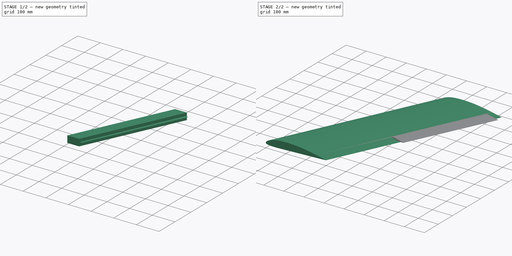
[diagram: build sequence overview — one tinted view per stage of 2, left to right]
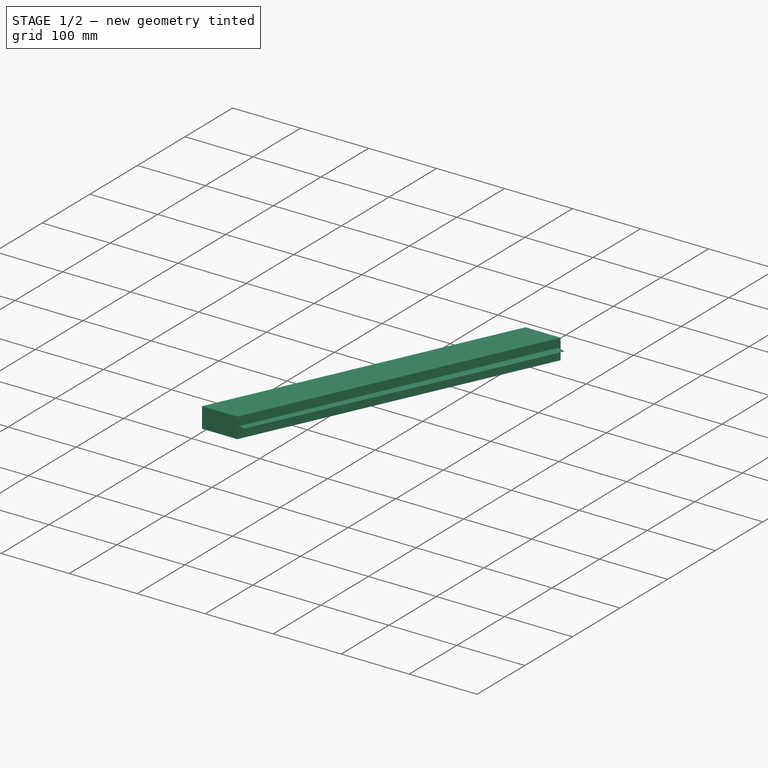
[diagram: stage 1 of 2 — iso view after this stage's code; geometry added in this stage tinted green]
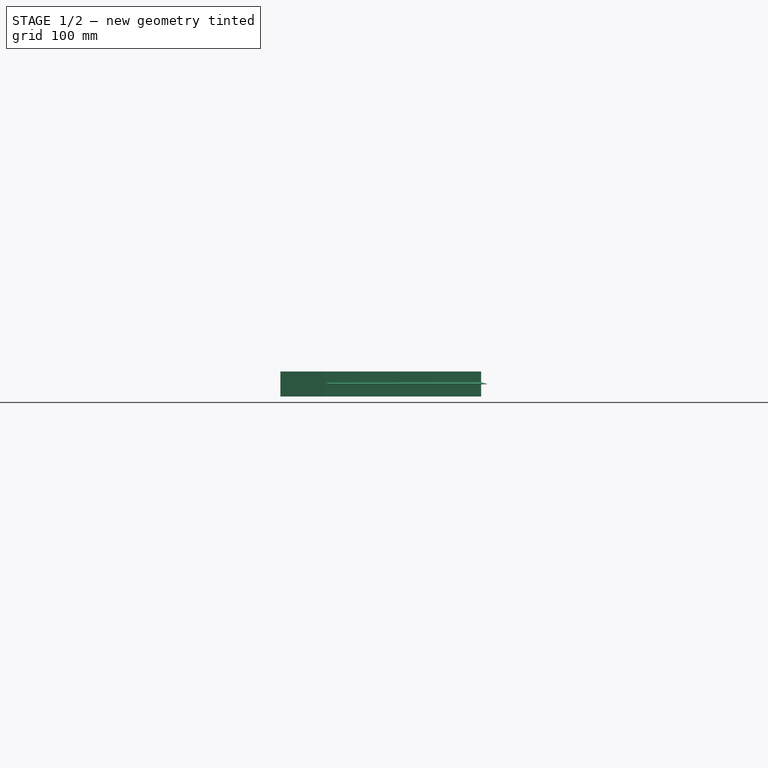
[diagram: stage 1 of 2 — front view after this stage's code; geometry added in this stage tinted green]
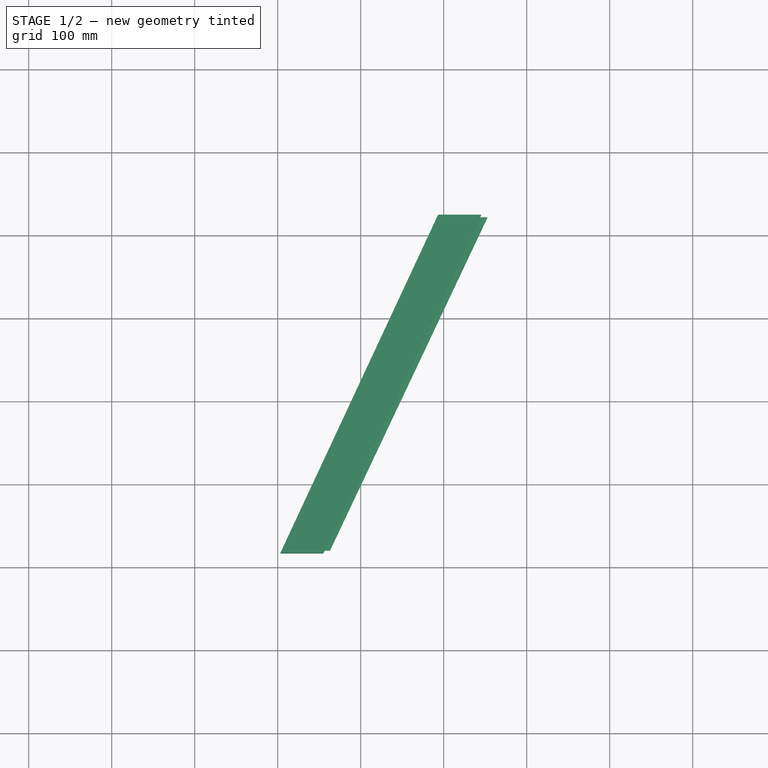
[diagram: stage 1 of 2 — top view after this stage's code; geometry added in this stage tinted green]
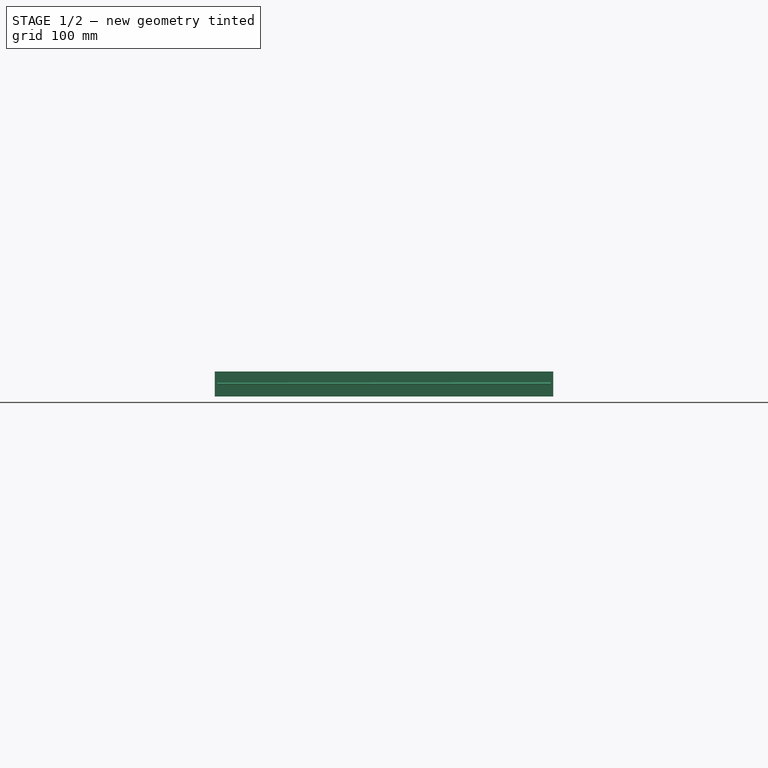
[diagram: stage 1 of 2 — right view after this stage's code; geometry added in this stage tinted green]
FCSTD DOCUMENT  (FreeCAD 1.0R39319 (Git))
Label: Unnamed
License: All rights reserved
LicenseURL: https://en.wikipedia.org/wiki/All_rights_reserved
objects: Sketcher::SketchObject×5, PartDesign::Body×3, PartDesign::AdditiveLoft×2, PartDesign::Pad×1, PartDesign::Boolean×1
note: 24 computed .brp shape members not serialized (recipe doc carries the construction recipe); baked Part::Feature solids carry a one-line shape summary decoded from their .brp

FEATURE [Sketcher::SketchObject] Sketch002
  ArcFitTolerance = 1e-06
  AttachmentSupport = -> [XY_Plane001]
  FullyConstrained = false
  MakeInternals = false
  MapMode = 5
  sketch-geometry (4):
    g0: LineSegment StartX=593.329 StartY=725.002 StartZ=0 EndX=403.151 EndY=317.163 EndZ=0
    g1: LineSegment StartX=645.144 StartY=725.002 StartZ=0 EndX=454.966 EndY=317.163 EndZ=0
    g2: LineSegment StartX=403.151 StartY=317.163 StartZ=0 EndX=454.966 EndY=317.163 EndZ=0
    g3: LineSegment StartX=593.329 StartY=725.002 StartZ=0 EndX=645.144 EndY=725.002 EndZ=0
  constraints (8):
    c: Distance(g0) = 450
    c: Distance(g1) = 450
    c: Coincident(g2,g0)
    c: Coincident(g2,g1)
    c: Horizontal(g2)
    c: Coincident(g3,g0)
    c: Coincident(g3,g1)
    c: Horizontal(g3)
FEATURE [PartDesign::Pad] Pad
  Direction = (0,0,1)
  Length = 30
  Length2 = 10
  Midplane = true
  Profile = -> Sketch002
  ReferenceAxis = -> Sketch002 [N_Axis]
  Refine = true
  Suppressed = false
  Type = 0
FEATURE [PartDesign::Body] Body
  AllowCompound = false
  Group = -> [Sketch001,Sketch,AdditiveLoft,Boolean]
  Origin = -> Origin
  Tip = -> Boolean
FEATURE [Sketcher::SketchObject] Sketch003
  ArcFitTolerance = 1e-06
  FullyConstrained = false
  MakeInternals = false
  Placement = pos=(353,722,0) rot=(1,0,0;1.5708rad)
  sketch-geometry (23):
    g0: LineSegment StartX=243.591 StartY=12.0254 StartZ=0 EndX=252 EndY=10.8161 EndZ=0
    g1: LineSegment StartX=252 StartY=10.8161 StartZ=0 EndX=258 EndY=9.5922 EndZ=0
    g2: LineSegment StartX=258 StartY=9.5922 StartZ=0 EndX=264 EndY=8.33673 EndZ=0
    g3: LineSegment StartX=264 StartY=8.33673 StartZ=0 EndX=270 EndY=7.05075 EndZ=0
    g4: LineSegment StartX=270 StartY=7.05075 StartZ=0 EndX=276 EndY=5.73468 EndZ=0
    g5: LineSegment StartX=276 StartY=5.73468 StartZ=0 EndX=282 EndY=4.38717 EndZ=0
    g6: LineSegment StartX=282 StartY=4.38717 StartZ=0 EndX=288 EndY=3.00696 EndZ=0
    g7: LineSegment StartX=288 StartY=3.00696 StartZ=0 EndX=291 EndY=2.30604 EndZ=0
    g8: LineSegment StartX=291 StartY=2.30604 StartZ=0 EndX=294 EndY=1.60005 EndZ=0
    g9: LineSegment StartX=294 StartY=1.60005 StartZ=0 EndX=297 EndY=0.8907 EndZ=0
    g10: LineSegment StartX=297 StartY=0.8907 StartZ=0 EndX=299.995 EndY=0 EndZ=0
    g11: LineSegment StartX=243.591 StartY=-2.14492 StartZ=0 EndX=252 EndY=-1.94259 EndZ=0
    g12: LineSegment StartX=252 StartY=-1.94259 StartZ=0 EndX=258 EndY=-1.72224 EndZ=0
    g13: LineSegment StartX=258 StartY=-1.72224 StartZ=0 EndX=264 EndY=-1.50189 EndZ=0
    g14: LineSegment StartX=264 StartY=-1.50189 StartZ=0 EndX=270 EndY=-1.28154 EndZ=0
    g15: LineSegment StartX=270 StartY=-1.28154 StartZ=0 EndX=276 EndY=-1.06119 EndZ=0
    g16: LineSegment StartX=276 StartY=-1.06119 StartZ=0 EndX=282 EndY=-0.84084 EndZ=0
    g17: LineSegment StartX=282 StartY=-0.84084 StartZ=0 EndX=288 EndY=-0.62049 EndZ=0
    g18: LineSegment StartX=288 StartY=-0.62049 StartZ=0 EndX=291 EndY=-0.51033 EndZ=0
    g19: LineSegment StartX=291 StartY=-0.51033 StartZ=0 EndX=294 EndY=-0.40017 EndZ=0
    g20: LineSegment StartX=294 StartY=-0.40017 StartZ=0 EndX=297 EndY=-0.28998 EndZ=0
    g21: LineSegment StartX=297 StartY=-0.28998 StartZ=0 EndX=299.995 EndY=0 EndZ=0
    g22: LineSegment StartX=243.591 StartY=12.0254 StartZ=0 EndX=243.591 EndY=-2.14492 EndZ=0
  constraints (24):
    c: Coincident(g0,g1)
    c: Coincident(g1,g2)
    c: Coincident(g2,g3)
    c: Coincident(g3,g4)
    c: Coincident(g4,g5)
    c: Coincident(g5,g6)
    c: Coincident(g6,g7)
    c: Coincident(g7,g8)
    c: Coincident(g8,g9)
    c: Coincident(g9,g10)
    c: Coincident(g11,g12)
    c: Coincident(g12,g13)
    c: Coincident(g13,g14)
    c: Coincident(g14,g15)
    c: Coincident(g15,g16)
    c: Coincident(g16,g17)
    c: Coincident(g17,g18)
    c: Coincident(g18,g19)
    c: Coincident(g19,g20)
    c: Coincident(g20,g21)
    c: Coincident(g10,g21)
    c: Coincident(g22,g0)
    c: Coincident(g22,g11)
    c: Vertical(g22)
FEATURE [Sketcher::SketchObject] Sketch004
  ArcFitTolerance = 1e-06
  FullyConstrained = false
  MakeInternals = false
  Placement = pos=(163,320.16,0) rot=(1,0,0;1.5708rad)
  sketch-geometry (23):
    g0: LineSegment StartX=243.591 StartY=12.0254 StartZ=0 EndX=252 EndY=10.8161 EndZ=0
    g1: LineSegment StartX=252 StartY=10.8161 StartZ=0 EndX=258 EndY=9.5922 EndZ=0
    g2: LineSegment StartX=258 StartY=9.5922 StartZ=0 EndX=264 EndY=8.33673 EndZ=0
    g3: LineSegment StartX=264 StartY=8.33673 StartZ=0 EndX=270 EndY=7.05075 EndZ=0
    g4: LineSegment StartX=270 StartY=7.05075 StartZ=0 EndX=276 EndY=5.73468 EndZ=0
    g5: LineSegment StartX=276 StartY=5.73468 StartZ=0 EndX=282 EndY=4.38717 EndZ=0
    g6: LineSegment StartX=282 StartY=4.38717 StartZ=0 EndX=288 EndY=3.00696 EndZ=0
    g7: LineSegment StartX=288 StartY=3.00696 StartZ=0 EndX=291 EndY=2.30604 EndZ=0
    g8: LineSegment StartX=291 StartY=2.30604 StartZ=0 EndX=294 EndY=1.60005 EndZ=0
    g9: LineSegment StartX=294 StartY=1.60005 StartZ=0 EndX=297 EndY=0.8907 EndZ=0
    g10: LineSegment StartX=297 StartY=0.8907 StartZ=0 EndX=299.995 EndY=0 EndZ=0
    g11: LineSegment StartX=243.591 StartY=-2.14492 StartZ=0 EndX=252 EndY=-1.94259 EndZ=0
    g12: LineSegment StartX=252 StartY=-1.94259 StartZ=0 EndX=258 EndY=-1.72224 EndZ=0
    g13: LineSegment StartX=258 StartY=-1.72224 StartZ=0 EndX=264 EndY=-1.50189 EndZ=0
    g14: LineSegment StartX=264 StartY=-1.50189 StartZ=0 EndX=270 EndY=-1.28154 EndZ=0
    g15: LineSegment StartX=270 StartY=-1.28154 StartZ=0 EndX=276 EndY=-1.06119 EndZ=0
    g16: LineSegment StartX=276 StartY=-1.06119 StartZ=0 EndX=282 EndY=-0.84084 EndZ=0
    g17: LineSegment StartX=282 StartY=-0.84084 StartZ=0 EndX=288 EndY=-0.62049 EndZ=0
    g18: LineSegment StartX=288 StartY=-0.62049 StartZ=0 EndX=291 EndY=-0.51033 EndZ=0
    g19: LineSegment StartX=291 StartY=-0.51033 StartZ=0 EndX=294 EndY=-0.40017 EndZ=0
    g20: LineSegment StartX=294 StartY=-0.40017 StartZ=0 EndX=297 EndY=-0.28998 EndZ=0
    g21: LineSegment StartX=297 StartY=-0.28998 StartZ=0 EndX=299.995 EndY=0 EndZ=0
    g22: LineSegment StartX=243.591 StartY=12.0254 StartZ=0 EndX=243.591 EndY=-2.14492 EndZ=0
  constraints (24):
    c: Coincident(g0,g1)
    c: Coincident(g1,g2)
    c: Coincident(g2,g3)
    c: Coincident(g3,g4)
    c: Coincident(g4,g5)
    c: Coincident(g5,g6)
    c: Coincident(g6,g7)
    c: Coincident(g7,g8)
    c: Coincident(g8,g9)
    c: Coincident(g9,g10)
    c: Coincident(g11,g12)
    c: Coincident(g12,g13)
    c: Coincident(g13,g14)
    c: Coincident(g14,g15)
    c: Coincident(g15,g16)
    c: Coincident(g16,g17)
    c: Coincident(g17,g18)
    c: Coincident(g18,g19)
    c: Coincident(g19,g20)
    c: Coincident(g20,g21)
    c: Coincident(g10,g21)
    c: Coincident(g22,g0)
    c: Coincident(g22,g11)
    c: Vertical(g22)
FEATURE [PartDesign::AdditiveLoft] AdditiveLoft001
  Closed = false
  Placement = pos=(353,722,0) rot=(1,0,0;1.5708rad)
  Profile = -> Sketch003
  Refine = true
  Ruled = false
  Sections = -> [Sketch004]
  Suppressed = false
FEATURE [PartDesign::Body] Body002  label="Flaperon"
  AllowCompound = false
  Group = -> [Sketch003,Sketch004,AdditiveLoft001]
  Origin = -> Origin002
  Tip = -> AdditiveLoft001
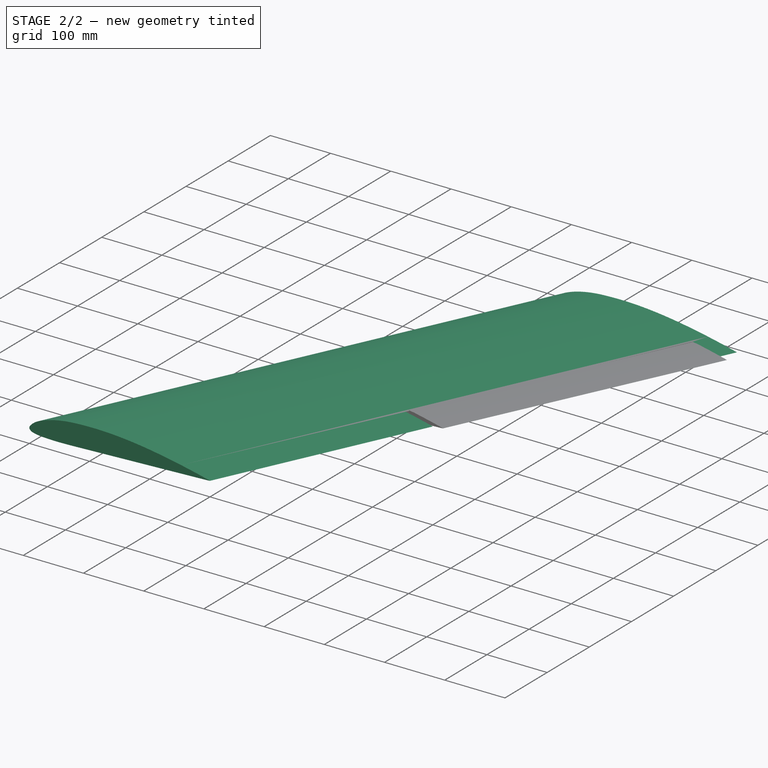
[diagram: stage 2 of 2 — iso view after this stage's code; geometry added in this stage tinted green]
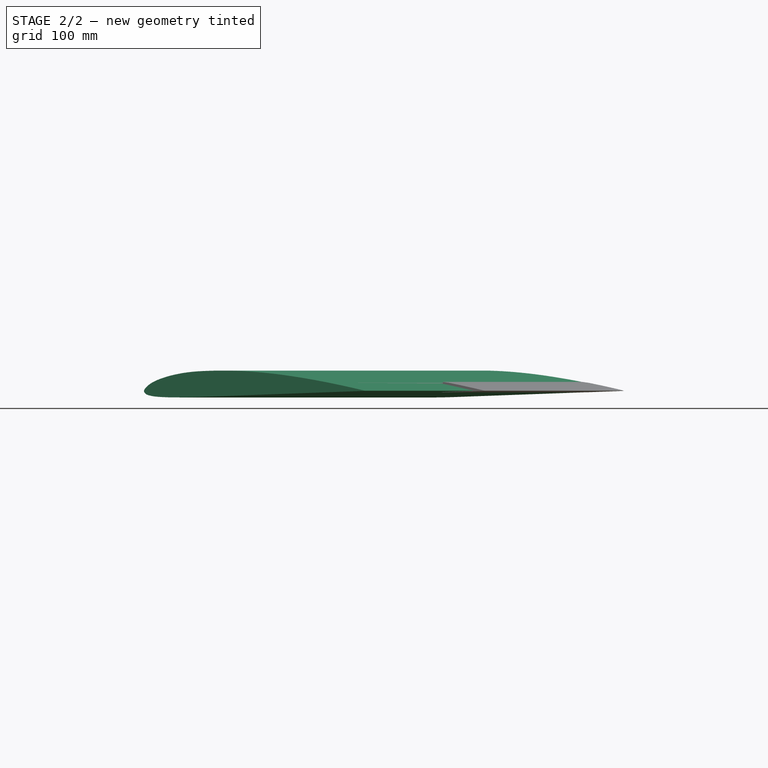
[diagram: stage 2 of 2 — front view after this stage's code; geometry added in this stage tinted green]
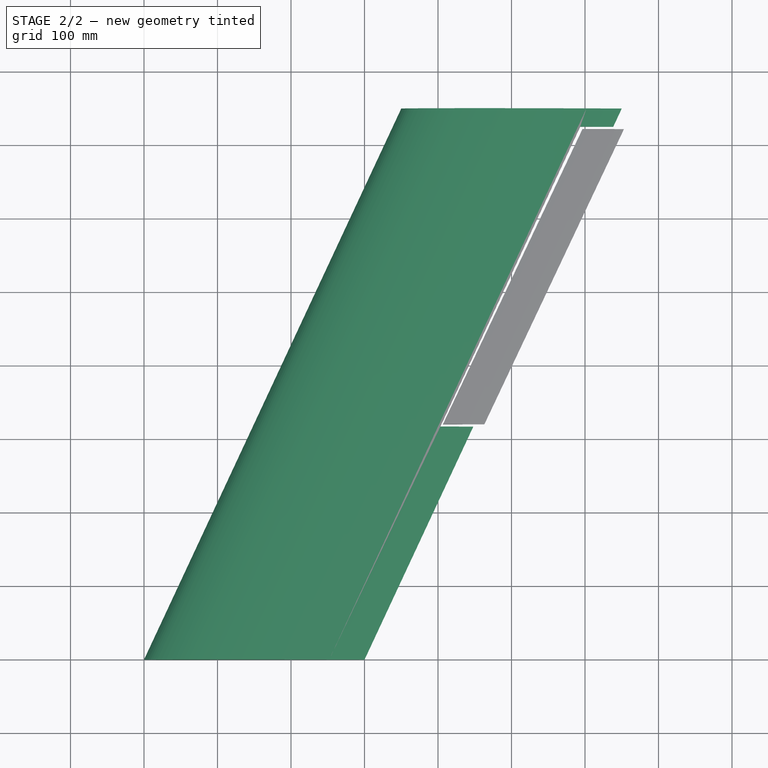
[diagram: stage 2 of 2 — top view after this stage's code; geometry added in this stage tinted green]
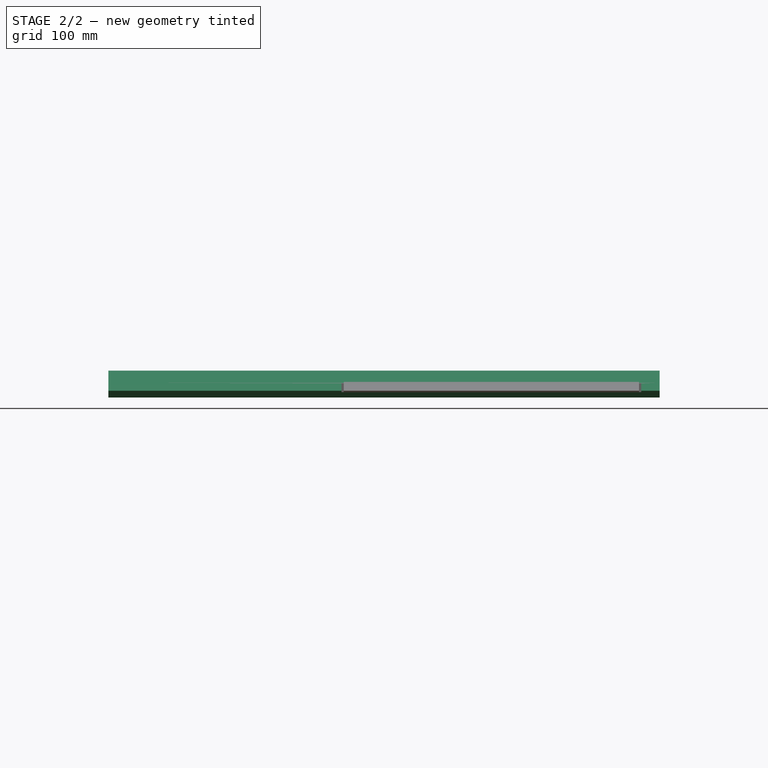
[diagram: stage 2 of 2 — right view after this stage's code; geometry added in this stage tinted green]
FEATURE [Sketcher::SketchObject] Sketch
  ArcFitTolerance = 1e-06
  FullyConstrained = false
  MakeInternals = false
  Placement = pos=(0,0,0) rot=(1,0,0;1.5708rad)
  sketch-geometry (120):
    g0: LineSegment StartX=0 StartY=0 StartZ=0 EndX=0.15 EndY=0.7017 EndZ=0
    g1: LineSegment StartX=0.15 StartY=0.7017 StartZ=0 EndX=0.3 EndY=1.11813 EndZ=0
    g2: LineSegment StartX=0.3 StartY=1.11813 StartZ=0 EndX=0.6 EndY=1.74075 EndZ=0
    g3: LineSegment StartX=0.6 StartY=1.74075 StartZ=0 EndX=1.2 EndY=2.67714 EndZ=0
    g4: LineSegment StartX=1.2 StartY=2.67714 StartZ=0 EndX=2.4 EndY=4.1205 EndZ=0
    g5: LineSegment StartX=2.4 StartY=4.1205 StartZ=0 EndX=3.6 EndY=5.35743 EndZ=0
    g6: LineSegment StartX=3.6 StartY=5.35743 StartZ=0 EndX=6 EndY=7.61205 EndZ=0
    g7: LineSegment StartX=6 StartY=7.61205 StartZ=0 EndX=9 EndY=9.90645 EndZ=0
    g8: LineSegment StartX=9 StartY=9.90645 StartZ=0 EndX=12 EndY=11.7385 EndZ=0
    g9: LineSegment StartX=12 StartY=11.7385 StartZ=0 EndX=15 EndY=13.2826 EndZ=0
    g10: LineSegment StartX=15 StartY=13.2826 StartZ=0 EndX=18 EndY=14.6271 EndZ=0
    g11: LineSegment StartX=18 StartY=14.6271 StartZ=0 EndX=24 EndY=16.9292 EndZ=0
    g12: LineSegment StartX=24 StartY=16.9292 StartZ=0 EndX=30 EndY=18.8994 EndZ=0
    g13: LineSegment StartX=30 StartY=18.8994 StartZ=0 EndX=36 EndY=20.5861 EndZ=0
    g14: LineSegment StartX=36 StartY=20.5861 StartZ=0 EndX=42 EndY=22.0308 EndZ=0
    g15: LineSegment StartX=42 StartY=22.0308 StartZ=0 EndX=48 EndY=23.2712 EndZ=0
    g16: LineSegment StartX=48 StartY=23.2712 StartZ=0 EndX=54 EndY=24.3206 EndZ=0
    g17: LineSegment StartX=54 StartY=24.3206 StartZ=0 EndX=60 EndY=25.1761 EndZ=0
    g18: LineSegment StartX=60 StartY=25.1761 StartZ=0 EndX=66 EndY=25.843 EndZ=0
    g19: LineSegment StartX=66 StartY=25.843 StartZ=0 EndX=72 EndY=26.3492 EndZ=0
    g20: LineSegment StartX=72 StartY=26.3492 StartZ=0 EndX=78 EndY=26.7252 EndZ=0
    g21: LineSegment StartX=78 StartY=26.7252 StartZ=0 EndX=84 EndY=27.0005 EndZ=0
    g22: LineSegment StartX=84 StartY=27.0005 StartZ=0 EndX=90 EndY=27.2041 EndZ=0
    g23: LineSegment StartX=90 StartY=27.2041 StartZ=0 EndX=96 EndY=27.3557 EndZ=0
    g24: LineSegment StartX=96 StartY=27.3557 StartZ=0 EndX=102 EndY=27.4524 EndZ=0
    g25: LineSegment StartX=102 StartY=27.4524 StartZ=0 EndX=108 EndY=27.488 EndZ=0
    g26: LineSegment StartX=108 StartY=27.488 StartZ=0 EndX=114 EndY=27.4564 EndZ=0
    g27: LineSegment StartX=114 StartY=27.4564 StartZ=0 EndX=120 EndY=27.3514 EndZ=0
    g28: LineSegment StartX=120 StartY=27.3514 StartZ=0 EndX=126 EndY=27.1697 EndZ=0
    g29: LineSegment StartX=126 StartY=27.1697 StartZ=0 EndX=132 EndY=26.9153 EndZ=0
    g30: LineSegment StartX=132 StartY=26.9153 StartZ=0 EndX=138 EndY=26.5928 EndZ=0
    g31: LineSegment StartX=138 StartY=26.5928 StartZ=0 EndX=144 EndY=26.2072 EndZ=0
    g32: LineSegment StartX=144 StartY=26.2072 StartZ=0 EndX=150 EndY=25.7632 EndZ=0
    g33: LineSegment StartX=150 StartY=25.7632 StartZ=0 EndX=156 EndY=25.2644 EndZ=0
    g34: LineSegment StartX=156 StartY=25.2644 StartZ=0 EndX=162 EndY=24.7114 EndZ=0
    g35: LineSegment StartX=162 StartY=24.7114 StartZ=0 EndX=168 EndY=24.1044 EndZ=0
    g36: LineSegment StartX=168 StartY=24.1044 StartZ=0 EndX=174 EndY=23.4435 EndZ=0
    g37: LineSegment StartX=174 StartY=23.4435 StartZ=0 EndX=180 EndY=22.729 EndZ=0
    g38: LineSegment StartX=180 StartY=22.729 StartZ=0 EndX=186 EndY=21.9617 EndZ=0
    g39: LineSegment StartX=186 StartY=21.9617 StartZ=0 EndX=192 EndY=21.1447 EndZ=0
    g40: LineSegment StartX=192 StartY=21.1447 StartZ=0 EndX=198 EndY=20.2814 EndZ=0
    g41: LineSegment StartX=198 StartY=20.2814 StartZ=0 EndX=204 EndY=19.3753 EndZ=0
    g42: LineSegment StartX=204 StartY=19.3753 StartZ=0 EndX=210 EndY=18.4299 EndZ=0
    g43: LineSegment StartX=210 StartY=18.4299 StartZ=0 EndX=216 EndY=17.448 EndZ=0
    g44: LineSegment StartX=216 StartY=17.448 StartZ=0 EndX=222 EndY=16.4303 EndZ=0
    g45: LineSegment StartX=222 StartY=16.4303 StartZ=0 EndX=228 EndY=15.377 EndZ=0
    g46: LineSegment StartX=228 StartY=15.377 StartZ=0 EndX=234 EndY=14.2884 EndZ=0
    g47: LineSegment StartX=234 StartY=14.2884 StartZ=0 EndX=240 EndY=13.1651 EndZ=0
    g48: LineSegment StartX=240 StartY=13.1651 StartZ=0 EndX=246 EndY=12.0073 EndZ=0
    g49: LineSegment StartX=246 StartY=12.0073 StartZ=0 EndX=252 EndY=10.8161 EndZ=0
    g50: LineSegment StartX=252 StartY=10.8161 StartZ=0 EndX=258 EndY=9.5922 EndZ=0
    g51: LineSegment StartX=258 StartY=9.5922 StartZ=0 EndX=264 EndY=8.33673 EndZ=0
    g52: LineSegment StartX=264 StartY=8.33673 StartZ=0 EndX=270 EndY=7.05075 EndZ=0
    g53: LineSegment StartX=270 StartY=7.05075 StartZ=0 EndX=276 EndY=5.73468 EndZ=0
    g54: LineSegment StartX=276 StartY=5.73468 StartZ=0 EndX=282 EndY=4.38717 EndZ=0
    g55: LineSegment StartX=282 StartY=4.38717 StartZ=0 EndX=288 EndY=3.00696 EndZ=0
    g56: LineSegment StartX=288 StartY=3.00696 StartZ=0 EndX=291 EndY=2.30604 EndZ=0
    g57: LineSegment StartX=291 StartY=2.30604 StartZ=0 EndX=294 EndY=1.60005 EndZ=0
    g58: LineSegment StartX=294 StartY=1.60005 StartZ=0 EndX=297 EndY=0.8907 EndZ=0
    g59: LineSegment StartX=297 StartY=0.8907 StartZ=0 EndX=299.995 EndY=0 EndZ=0
    g60: LineSegment StartX=0 StartY=0 StartZ=0 EndX=0.15 EndY=-1.401 EndZ=0
    g61: LineSegment StartX=0.15 StartY=-1.401 StartZ=0 EndX=0.3 EndY=-1.78254 EndZ=0
    g62: LineSegment StartX=0.3 StartY=-1.78254 StartZ=0 EndX=0.6 EndY=-2.34339 EndZ=0
    g63: LineSegment StartX=0.6 StartY=-2.34339 StartZ=0 EndX=1.2 EndY=-3.15378 EndZ=0
    g64: LineSegment StartX=1.2 StartY=-3.15378 StartZ=0 EndX=2.4 EndY=-4.28586 EndZ=0
    g65: LineSegment StartX=2.4 StartY=-4.28586 StartZ=0 EndX=3.6 EndY=-5.09199 EndZ=0
    g66: LineSegment StartX=3.6 StartY=-5.09199 StartZ=0 EndX=6 EndY=-6.08169 EndZ=0
    g67: LineSegment StartX=6 StartY=-6.08169 StartZ=0 EndX=9 EndY=-6.78168 EndZ=0
    g68: LineSegment StartX=9 StartY=-6.78168 StartZ=0 EndX=12 EndY=-7.35633 EndZ=0
    g69: LineSegment StartX=12 StartY=-7.35633 StartZ=0 EndX=15 EndY=-7.81356 EndZ=0
    g70: LineSegment StartX=15 StartY=-7.81356 StartZ=0 EndX=18 EndY=-8.13831 EndZ=0
    g71: LineSegment StartX=18 StartY=-8.13831 StartZ=0 EndX=24 EndY=-8.53785 EndZ=0
    g72: LineSegment StartX=24 StartY=-8.53785 StartZ=0 EndX=30 EndY=-8.81358 EndZ=0
    g73: LineSegment StartX=30 StartY=-8.81358 StartZ=0 EndX=36 EndY=-8.98899 EndZ=0
    g74: LineSegment StartX=36 StartY=-8.98899 StartZ=0 EndX=42 EndY=-9.07212 EndZ=0
    g75: LineSegment StartX=42 StartY=-9.07212 StartZ=0 EndX=48 EndY=-9.07638 EndZ=0
    g76: LineSegment StartX=48 StartY=-9.07638 StartZ=0 EndX=54 EndY=-9.0147 EndZ=0
    g77: LineSegment StartX=54 StartY=-9.0147 StartZ=0 EndX=60 EndY=-8.89968 EndZ=0
    g78: LineSegment StartX=60 StartY=-8.89968 StartZ=0 EndX=66 EndY=-8.74335 EndZ=0
    g79: LineSegment StartX=66 StartY=-8.74335 StartZ=0 EndX=72 EndY=-8.55543 EndZ=0
    g80: LineSegment StartX=72 StartY=-8.55543 StartZ=0 EndX=78 EndY=-8.34492 EndZ=0
    g81: LineSegment StartX=78 StartY=-8.34492 StartZ=0 EndX=84 EndY=-8.12088 EndZ=0
    g82: LineSegment StartX=84 StartY=-8.12088 StartZ=0 EndX=90 EndY=-7.89237 EndZ=0
    g83: LineSegment StartX=90 StartY=-7.89237 StartZ=0 EndX=96 EndY=-7.66695 EndZ=0
    g84: LineSegment StartX=96 StartY=-7.66695 StartZ=0 EndX=102 EndY=-7.44528 EndZ=0
    g85: LineSegment StartX=102 StartY=-7.44528 StartZ=0 EndX=108 EndY=-7.2261 EndZ=0
    g86: LineSegment StartX=108 StartY=-7.2261 StartZ=0 EndX=114 EndY=-7.00818 EndZ=0
    g87: LineSegment StartX=114 StartY=-7.00818 StartZ=0 EndX=120 EndY=-6.79023 EndZ=0
    g88: LineSegment StartX=120 StartY=-6.79023 StartZ=0 EndX=126 EndY=-6.57126 EndZ=0
    g89: LineSegment StartX=126 StartY=-6.57126 StartZ=0 EndX=132 EndY=-6.35124 EndZ=0
    g90: LineSegment StartX=132 StartY=-6.35124 StartZ=0 EndX=138 EndY=-6.13059 EndZ=0
    g91: LineSegment StartX=138 StartY=-6.13059 StartZ=0 EndX=144 EndY=-5.90958 EndZ=0
    g92: LineSegment StartX=144 StartY=-5.90958 StartZ=0 EndX=150 EndY=-5.68857 EndZ=0
    g93: LineSegment StartX=150 StartY=-5.68857 StartZ=0 EndX=156 EndY=-5.46786 EndZ=0
    g94: LineSegment StartX=156 StartY=-5.46786 StartZ=0 EndX=162 EndY=-5.24742 EndZ=0
    g95: LineSegment StartX=162 StartY=-5.24742 StartZ=0 EndX=168 EndY=-5.02716 EndZ=0
    g96: LineSegment StartX=168 StartY=-5.02716 StartZ=0 EndX=174 EndY=-4.80696 EndZ=0
    g97: LineSegment StartX=174 StartY=-4.80696 StartZ=0 EndX=180 EndY=-4.58679 EndZ=0
    g98: LineSegment StartX=180 StartY=-4.58679 StartZ=0 EndX=186 EndY=-4.36653 EndZ=0
    g99: LineSegment StartX=186 StartY=-4.36653 StartZ=0 EndX=192 EndY=-4.14621 EndZ=0
    g100: LineSegment StartX=192 StartY=-4.14621 StartZ=0 EndX=198 EndY=-3.92586 EndZ=0
    g101: LineSegment StartX=198 StartY=-3.92586 StartZ=0 EndX=204 EndY=-3.70545 EndZ=0
    g102: LineSegment StartX=204 StartY=-3.70545 StartZ=0 EndX=210 EndY=-3.48507 EndZ=0
    g103: LineSegment StartX=210 StartY=-3.48507 StartZ=0 EndX=216 EndY=-3.26469 EndZ=0
    g104: LineSegment StartX=216 StartY=-3.26469 StartZ=0 EndX=222 EndY=-3.04434 EndZ=0
    g105: LineSegment StartX=222 StartY=-3.04434 StartZ=0 EndX=228 EndY=-2.82399 EndZ=0
    g106: LineSegment StartX=228 StartY=-2.82399 StartZ=0 EndX=234 EndY=-2.60364 EndZ=0
    g107: LineSegment StartX=234 StartY=-2.60364 StartZ=0 EndX=240 EndY=-2.38329 EndZ=0
    g108: LineSegment StartX=240 StartY=-2.38329 StartZ=0 EndX=246 EndY=-2.16294 EndZ=0
    g109: LineSegment StartX=246 StartY=-2.16294 StartZ=0 EndX=252 EndY=-1.94259 EndZ=0
    g110: LineSegment StartX=252 StartY=-1.94259 StartZ=0 EndX=258 EndY=-1.72224 EndZ=0
    g111: LineSegment StartX=258 StartY=-1.72224 StartZ=0 EndX=264 EndY=-1.50189 EndZ=0
    g112: LineSegment StartX=264 StartY=-1.50189 StartZ=0 EndX=270 EndY=-1.28154 EndZ=0
    g113: LineSegment StartX=270 StartY=-1.28154 StartZ=0 EndX=276 EndY=-1.06119 EndZ=0
    g114: LineSegment StartX=276 StartY=-1.06119 StartZ=0 EndX=282 EndY=-0.84084 EndZ=0
    g115: LineSegment StartX=282 StartY=-0.84084 StartZ=0 EndX=288 EndY=-0.62049 EndZ=0
    g116: LineSegment StartX=288 StartY=-0.62049 StartZ=0 EndX=291 EndY=-0.51033 EndZ=0
    g117: LineSegment StartX=291 StartY=-0.51033 StartZ=0 EndX=294 EndY=-0.40017 EndZ=0
    g118: LineSegment StartX=294 StartY=-0.40017 StartZ=0 EndX=297 EndY=-0.28998 EndZ=0
    g119: LineSegment StartX=297 StartY=-0.28998 StartZ=0 EndX=299.995 EndY=0 EndZ=0
  constraints (119):
    c: Coincident(g0,g1)
    c: Coincident(g1,g2)
    c: Coincident(g2,g3)
    c: Coincident(g3,g4)
    c: Coincident(g4,g5)
    c: Coincident(g5,g6)
    c: Coincident(g6,g7)
    c: Coincident(g7,g8)
    c: Coincident(g8,g9)
    c: Coincident(g9,g10)
    c: Coincident(g10,g11)
    c: Coincident(g11,g12)
    c: Coincident(g12,g13)
    c: Coincident(g13,g14)
    c: Coincident(g14,g15)
    c: Coincident(g15,g16)
    c: Coincident(g16,g17)
    c: Coincident(g17,g18)
    c: Coincident(g18,g19)
    c: Coincident(g19,g20)
    c: Coincident(g20,g21)
    c: Coincident(g21,g22)
    c: Coincident(g22,g23)
    c: Coincident(g23,g24)
    c: Coincident(g24,g25)
    c: Coincident(g25,g26)
    c: Coincident(g26,g27)
    c: Coincident(g27,g28)
    c: Coincident(g28,g29)
    c: Coincident(g29,g30)
    c: Coincident(g30,g31)
    c: Coincident(g31,g32)
    c: Coincident(g32,g33)
    c: Coincident(g33,g34)
    c: Coincident(g34,g35)
    c: Coincident(g35,g36)
    c: Coincident(g36,g37)
    c: Coincident(g37,g38)
    c: Coincident(g38,g39)
    c: Coincident(g39,g40)
    c: Coincident(g40,g41)
    c: Coincident(g41,g42)
    c: Coincident(g42,g43)
    c: Coincident(g43,g44)
    c: Coincident(g44,g45)
    c: Coincident(g45,g46)
    c: Coincident(g46,g47)
    c: Coincident(g47,g48)
    c: Coincident(g48,g49)
    c: Coincident(g49,g50)
    c: Coincident(g50,g51)
    c: Coincident(g51,g52)
    c: Coincident(g52,g53)
    c: Coincident(g53,g54)
    c: Coincident(g54,g55)
    c: Coincident(g55,g56)
    c: Coincident(g56,g57)
    c: Coincident(g57,g58)
    c: Coincident(g58,g59)
    c: Coincident(g60,g61)
    c: Coincident(g61,g62)
    c: Coincident(g62,g63)
    c: Coincident(g63,g64)
    c: Coincident(g64,g65)
    c: Coincident(g65,g66)
    c: Coincident(g66,g67)
    c: Coincident(g67,g68)
    c: Coincident(g68,g69)
    c: Coincident(g69,g70)
    c: Coincident(g70,g71)
    c: Coincident(g71,g72)
    c: Coincident(g72,g73)
    c: Coincident(g73,g74)
    c: Coincident(g74,g75)
    c: Coincident(g75,g76)
    c: Coincident(g76,g77)
    c: Coincident(g77,g78)
    c: Coincident(g78,g79)
    c: Coincident(g79,g80)
    c: Coincident(g80,g81)
    c: Coincident(g81,g82)
    c: Coincident(g82,g83)
    c: Coincident(g83,g84)
    c: Coincident(g84,g85)
    c: Coincident(g85,g86)
    c: Coincident(g86,g87)
    c: Coincident(g87,g88)
    c: Coincident(g88,g89)
    c: Coincident(g89,g90)
    c: Coincident(g90,g91)
    c: Coincident(g91,g92)
    c: Coincident(g92,g93)
    c: Coincident(g93,g94)
    c: Coincident(g94,g95)
    c: Coincident(g95,g96)
    c: Coincident(g96,g97)
    c: Coincident(g97,g98)
    c: Coincident(g98,g99)
    c: Coincident(g99,g100)
    c: Coincident(g100,g101)
    c: Coincident(g101,g102)
    c: Coincident(g102,g103)
    c: Coincident(g103,g104)
    c: Coincident(g104,g105)
    c: Coincident(g105,g106)
    c: Coincident(g106,g107)
    c: Coincident(g107,g108)
    c: Coincident(g108,g109)
    c: Coincident(g109,g110)
    c: Coincident(g110,g111)
    c: Coincident(g111,g112)
    c: Coincident(g112,g113)
    c: Coincident(g113,g114)
    c: Coincident(g114,g115)
    c: Coincident(g115,g116)
    c: Coincident(g116,g117)
    c: Coincident(g117,g118)
    c: Coincident(g118,g119)
    c: Coincident(g59,g119)
FEATURE [Sketcher::SketchObject] Sketch001
  ArcFitTolerance = 1e-06
  FullyConstrained = false
  MakeInternals = false
  Placement = pos=(350,750,0) rot=(1,0,0;1.5708rad)
  sketch-geometry (120):
    g0: LineSegment StartX=0 StartY=0 StartZ=0 EndX=0.15 EndY=0.7017 EndZ=0
    g1: LineSegment StartX=0.15 StartY=0.7017 StartZ=0 EndX=0.3 EndY=1.11813 EndZ=0
    g2: LineSegment StartX=0.3 StartY=1.11813 StartZ=0 EndX=0.6 EndY=1.74075 EndZ=0
    g3: LineSegment StartX=0.6 StartY=1.74075 StartZ=0 EndX=1.2 EndY=2.67714 EndZ=0
    g4: LineSegment StartX=1.2 StartY=2.67714 StartZ=0 EndX=2.4 EndY=4.1205 EndZ=0
    g5: LineSegment StartX=2.4 StartY=4.1205 StartZ=0 EndX=3.6 EndY=5.35743 EndZ=0
    g6: LineSegment StartX=3.6 StartY=5.35743 StartZ=0 EndX=6 EndY=7.61205 EndZ=0
    g7: LineSegment StartX=6 StartY=7.61205 StartZ=0 EndX=9 EndY=9.90645 EndZ=0
    g8: LineSegment StartX=9 StartY=9.90645 StartZ=0 EndX=12 EndY=11.7385 EndZ=0
    g9: LineSegment StartX=12 StartY=11.7385 StartZ=0 EndX=15 EndY=13.2826 EndZ=0
    g10: LineSegment StartX=15 StartY=13.2826 StartZ=0 EndX=18 EndY=14.6271 EndZ=0
    g11: LineSegment StartX=18 StartY=14.6271 StartZ=0 EndX=24 EndY=16.9292 EndZ=0
    g12: LineSegment StartX=24 StartY=16.9292 StartZ=0 EndX=30 EndY=18.8994 EndZ=0
    g13: LineSegment StartX=30 StartY=18.8994 StartZ=0 EndX=36 EndY=20.5861 EndZ=0
    g14: LineSegment StartX=36 StartY=20.5861 StartZ=0 EndX=42 EndY=22.0308 EndZ=0
    g15: LineSegment StartX=42 StartY=22.0308 StartZ=0 EndX=48 EndY=23.2712 EndZ=0
    g16: LineSegment StartX=48 StartY=23.2712 StartZ=0 EndX=54 EndY=24.3206 EndZ=0
    g17: LineSegment StartX=54 StartY=24.3206 StartZ=0 EndX=60 EndY=25.1761 EndZ=0
    g18: LineSegment StartX=60 StartY=25.1761 StartZ=0 EndX=66 EndY=25.843 EndZ=0
    g19: LineSegment StartX=66 StartY=25.843 StartZ=0 EndX=72 EndY=26.3492 EndZ=0
    g20: LineSegment StartX=72 StartY=26.3492 StartZ=0 EndX=78 EndY=26.7252 EndZ=0
    g21: LineSegment StartX=78 StartY=26.7252 StartZ=0 EndX=84 EndY=27.0005 EndZ=0
    g22: LineSegment StartX=84 StartY=27.0005 StartZ=0 EndX=90 EndY=27.2041 EndZ=0
    g23: LineSegment StartX=90 StartY=27.2041 StartZ=0 EndX=96 EndY=27.3557 EndZ=0
    g24: LineSegment StartX=96 StartY=27.3557 StartZ=0 EndX=102 EndY=27.4524 EndZ=0
    g25: LineSegment StartX=102 StartY=27.4524 StartZ=0 EndX=108 EndY=27.488 EndZ=0
    g26: LineSegment StartX=108 StartY=27.488 StartZ=0 EndX=114 EndY=27.4564 EndZ=0
    g27: LineSegment StartX=114 StartY=27.4564 StartZ=0 EndX=120 EndY=27.3514 EndZ=0
    g28: LineSegment StartX=120 StartY=27.3514 StartZ=0 EndX=126 EndY=27.1697 EndZ=0
    g29: LineSegment StartX=126 StartY=27.1697 StartZ=0 EndX=132 EndY=26.9153 EndZ=0
    g30: LineSegment StartX=132 StartY=26.9153 StartZ=0 EndX=138 EndY=26.5928 EndZ=0
    g31: LineSegment StartX=138 StartY=26.5928 StartZ=0 EndX=144 EndY=26.2072 EndZ=0
    g32: LineSegment StartX=144 StartY=26.2072 StartZ=0 EndX=150 EndY=25.7632 EndZ=0
    g33: LineSegment StartX=150 StartY=25.7632 StartZ=0 EndX=156 EndY=25.2644 EndZ=0
    g34: LineSegment StartX=156 StartY=25.2644 StartZ=0 EndX=162 EndY=24.7114 EndZ=0
    g35: LineSegment StartX=162 StartY=24.7114 StartZ=0 EndX=168 EndY=24.1044 EndZ=0
    g36: LineSegment StartX=168 StartY=24.1044 StartZ=0 EndX=174 EndY=23.4435 EndZ=0
    g37: LineSegment StartX=174 StartY=23.4435 StartZ=0 EndX=180 EndY=22.729 EndZ=0
    g38: LineSegment StartX=180 StartY=22.729 StartZ=0 EndX=186 EndY=21.9617 EndZ=0
    g39: LineSegment StartX=186 StartY=21.9617 StartZ=0 EndX=192 EndY=21.1447 EndZ=0
    g40: LineSegment StartX=192 StartY=21.1447 StartZ=0 EndX=198 EndY=20.2814 EndZ=0
    g41: LineSegment StartX=198 StartY=20.2814 StartZ=0 EndX=204 EndY=19.3753 EndZ=0
    g42: LineSegment StartX=204 StartY=19.3753 StartZ=0 EndX=210 EndY=18.4299 EndZ=0
    g43: LineSegment StartX=210 StartY=18.4299 StartZ=0 EndX=216 EndY=17.448 EndZ=0
    g44: LineSegment StartX=216 StartY=17.448 StartZ=0 EndX=222 EndY=16.4302 EndZ=0
    g45: LineSegment StartX=222 StartY=16.4302 StartZ=0 EndX=228 EndY=15.377 EndZ=0
    g46: LineSegment StartX=228 StartY=15.377 StartZ=0 EndX=234 EndY=14.2884 EndZ=0
    g47: LineSegment StartX=234 StartY=14.2884 StartZ=0 EndX=240 EndY=13.1651 EndZ=0
    g48: LineSegment StartX=240 StartY=13.1651 StartZ=0 EndX=246 EndY=12.0073 EndZ=0
    g49: LineSegment StartX=246 StartY=12.0073 StartZ=0 EndX=252 EndY=10.8161 EndZ=0
    g50: LineSegment StartX=252 StartY=10.8161 StartZ=0 EndX=258 EndY=9.5922 EndZ=0
    g51: LineSegment StartX=258 StartY=9.5922 StartZ=0 EndX=264 EndY=8.33673 EndZ=0
    g52: LineSegment StartX=264 StartY=8.33673 StartZ=0 EndX=270 EndY=7.05075 EndZ=0
    g53: LineSegment StartX=270 StartY=7.05075 StartZ=0 EndX=276 EndY=5.73468 EndZ=0
    g54: LineSegment StartX=276 StartY=5.73468 StartZ=0 EndX=282 EndY=4.38717 EndZ=0
    g55: LineSegment StartX=282 StartY=4.38717 StartZ=0 EndX=288 EndY=3.00696 EndZ=0
    g56: LineSegment StartX=288 StartY=3.00696 StartZ=0 EndX=291 EndY=2.30604 EndZ=0
    g57: LineSegment StartX=291 StartY=2.30604 StartZ=0 EndX=294 EndY=1.60005 EndZ=0
    g58: LineSegment StartX=294 StartY=1.60005 StartZ=0 EndX=297 EndY=0.8907 EndZ=0
    g59: LineSegment StartX=297 StartY=0.8907 StartZ=0 EndX=299.995 EndY=0 EndZ=0
    g60: LineSegment StartX=0 StartY=0 StartZ=0 EndX=0.15 EndY=-1.401 EndZ=0
    g61: LineSegment StartX=0.15 StartY=-1.401 StartZ=0 EndX=0.3 EndY=-1.78254 EndZ=0
    g62: LineSegment StartX=0.3 StartY=-1.78254 StartZ=0 EndX=0.6 EndY=-2.34339 EndZ=0
    g63: LineSegment StartX=0.6 StartY=-2.34339 StartZ=0 EndX=1.2 EndY=-3.15378 EndZ=0
    g64: LineSegment StartX=1.2 StartY=-3.15378 StartZ=0 EndX=2.4 EndY=-4.28586 EndZ=0
    g65: LineSegment StartX=2.4 StartY=-4.28586 StartZ=0 EndX=3.6 EndY=-5.09199 EndZ=0
    g66: LineSegment StartX=3.6 StartY=-5.09199 StartZ=0 EndX=6 EndY=-6.08169 EndZ=0
    g67: LineSegment StartX=6 StartY=-6.08169 StartZ=0 EndX=9 EndY=-6.78168 EndZ=0
    g68: LineSegment StartX=9 StartY=-6.78168 StartZ=0 EndX=12 EndY=-7.35633 EndZ=0
    g69: LineSegment StartX=12 StartY=-7.35633 StartZ=0 EndX=15 EndY=-7.81356 EndZ=0
    g70: LineSegment StartX=15 StartY=-7.81356 StartZ=0 EndX=18 EndY=-8.13831 EndZ=0
    g71: LineSegment StartX=18 StartY=-8.13831 StartZ=0 EndX=24 EndY=-8.53785 EndZ=0
    g72: LineSegment StartX=24 StartY=-8.53785 StartZ=0 EndX=30 EndY=-8.81358 EndZ=0
    g73: LineSegment StartX=30 StartY=-8.81358 StartZ=0 EndX=36 EndY=-8.98899 EndZ=0
    g74: LineSegment StartX=36 StartY=-8.98899 StartZ=0 EndX=42 EndY=-9.07212 EndZ=0
    g75: LineSegment StartX=42 StartY=-9.07212 StartZ=0 EndX=48 EndY=-9.07638 EndZ=0
    g76: LineSegment StartX=48 StartY=-9.07638 StartZ=0 EndX=54 EndY=-9.0147 EndZ=0
    g77: LineSegment StartX=54 StartY=-9.0147 StartZ=0 EndX=60 EndY=-8.89968 EndZ=0
    g78: LineSegment StartX=60 StartY=-8.89968 StartZ=0 EndX=66 EndY=-8.74335 EndZ=0
    g79: LineSegment StartX=66 StartY=-8.74335 StartZ=0 EndX=72 EndY=-8.55543 EndZ=0
    g80: LineSegment StartX=72 StartY=-8.55543 StartZ=0 EndX=78 EndY=-8.34492 EndZ=0
    g81: LineSegment StartX=78 StartY=-8.34492 StartZ=0 EndX=84 EndY=-8.12088 EndZ=0
    g82: LineSegment StartX=84 StartY=-8.12088 StartZ=0 EndX=90 EndY=-7.89237 EndZ=0
    g83: LineSegment StartX=90 StartY=-7.89237 StartZ=0 EndX=96 EndY=-7.66695 EndZ=0
    g84: LineSegment StartX=96 StartY=-7.66695 StartZ=0 EndX=102 EndY=-7.44528 EndZ=0
    g85: LineSegment StartX=102 StartY=-7.44528 StartZ=0 EndX=108 EndY=-7.2261 EndZ=0
    g86: LineSegment StartX=108 StartY=-7.2261 StartZ=0 EndX=114 EndY=-7.00818 EndZ=0
    g87: LineSegment StartX=114 StartY=-7.00818 StartZ=0 EndX=120 EndY=-6.79023 EndZ=0
    g88: LineSegment StartX=120 StartY=-6.79023 StartZ=0 EndX=126 EndY=-6.57126 EndZ=0
    g89: LineSegment StartX=126 StartY=-6.57126 StartZ=0 EndX=132 EndY=-6.35124 EndZ=0
    g90: LineSegment StartX=132 StartY=-6.35124 StartZ=0 EndX=138 EndY=-6.13059 EndZ=0
    g91: LineSegment StartX=138 StartY=-6.13059 StartZ=0 EndX=144 EndY=-5.90958 EndZ=0
    g92: LineSegment StartX=144 StartY=-5.90958 StartZ=0 EndX=150 EndY=-5.68857 EndZ=0
    g93: LineSegment StartX=150 StartY=-5.68857 StartZ=0 EndX=156 EndY=-5.46786 EndZ=0
    g94: LineSegment StartX=156 StartY=-5.46786 StartZ=0 EndX=162 EndY=-5.24742 EndZ=0
    g95: LineSegment StartX=162 StartY=-5.24742 StartZ=0 EndX=168 EndY=-5.02716 EndZ=0
    g96: LineSegment StartX=168 StartY=-5.02716 StartZ=0 EndX=174 EndY=-4.80696 EndZ=0
    g97: LineSegment StartX=174 StartY=-4.80696 StartZ=0 EndX=180 EndY=-4.58679 EndZ=0
    g98: LineSegment StartX=180 StartY=-4.58679 StartZ=0 EndX=186 EndY=-4.36653 EndZ=0
    g99: LineSegment StartX=186 StartY=-4.36653 StartZ=0 EndX=192 EndY=-4.14621 EndZ=0
    g100: LineSegment StartX=192 StartY=-4.14621 StartZ=0 EndX=198 EndY=-3.92586 EndZ=0
    g101: LineSegment StartX=198 StartY=-3.92586 StartZ=0 EndX=204 EndY=-3.70545 EndZ=0
    g102: LineSegment StartX=204 StartY=-3.70545 StartZ=0 EndX=210 EndY=-3.48507 EndZ=0
    g103: LineSegment StartX=210 StartY=-3.48507 StartZ=0 EndX=216 EndY=-3.26469 EndZ=0
    g104: LineSegment StartX=216 StartY=-3.26469 StartZ=0 EndX=222 EndY=-3.04434 EndZ=0
    g105: LineSegment StartX=222 StartY=-3.04434 StartZ=0 EndX=228 EndY=-2.82399 EndZ=0
    g106: LineSegment StartX=228 StartY=-2.82399 StartZ=0 EndX=234 EndY=-2.60364 EndZ=0
    g107: LineSegment StartX=234 StartY=-2.60364 StartZ=0 EndX=240 EndY=-2.38329 EndZ=0
    g108: LineSegment StartX=240 StartY=-2.38329 StartZ=0 EndX=246 EndY=-2.16294 EndZ=0
    g109: LineSegment StartX=246 StartY=-2.16294 StartZ=0 EndX=252 EndY=-1.94259 EndZ=0
    g110: LineSegment StartX=252 StartY=-1.94259 StartZ=0 EndX=258 EndY=-1.72224 EndZ=0
    g111: LineSegment StartX=258 StartY=-1.72224 StartZ=0 EndX=264 EndY=-1.50189 EndZ=0
    g112: LineSegment StartX=264 StartY=-1.50189 StartZ=0 EndX=270 EndY=-1.28154 EndZ=0
    g113: LineSegment StartX=270 StartY=-1.28154 StartZ=0 EndX=276 EndY=-1.06119 EndZ=0
    g114: LineSegment StartX=276 StartY=-1.06119 StartZ=0 EndX=282 EndY=-0.84084 EndZ=0
    g115: LineSegment StartX=282 StartY=-0.84084 StartZ=0 EndX=288 EndY=-0.62049 EndZ=0
    g116: LineSegment StartX=288 StartY=-0.62049 StartZ=0 EndX=291 EndY=-0.51033 EndZ=0
    g117: LineSegment StartX=291 StartY=-0.51033 StartZ=0 EndX=294 EndY=-0.40017 EndZ=0
    g118: LineSegment StartX=294 StartY=-0.40017 StartZ=0 EndX=297 EndY=-0.28998 EndZ=0
    g119: LineSegment StartX=297 StartY=-0.28998 StartZ=0 EndX=299.995 EndY=0 EndZ=0
  constraints (119):
    c: Coincident(g0,g1)
    c: Coincident(g1,g2)
    c: Coincident(g2,g3)
    c: Coincident(g3,g4)
    c: Coincident(g4,g5)
    c: Coincident(g5,g6)
    c: Coincident(g6,g7)
    c: Coincident(g7,g8)
    c: Coincident(g8,g9)
    c: Coincident(g9,g10)
    c: Coincident(g10,g11)
    c: Coincident(g11,g12)
    c: Coincident(g12,g13)
    c: Coincident(g13,g14)
    c: Coincident(g14,g15)
    c: Coincident(g15,g16)
    c: Coincident(g16,g17)
    c: Coincident(g17,g18)
    c: Coincident(g18,g19)
    c: Coincident(g19,g20)
    c: Coincident(g20,g21)
    c: Coincident(g21,g22)
    c: Coincident(g22,g23)
    c: Coincident(g23,g24)
    c: Coincident(g24,g25)
    c: Coincident(g25,g26)
    c: Coincident(g26,g27)
    c: Coincident(g27,g28)
    c: Coincident(g28,g29)
    c: Coincident(g29,g30)
    c: Coincident(g30,g31)
    c: Coincident(g31,g32)
    c: Coincident(g32,g33)
    c: Coincident(g33,g34)
    c: Coincident(g34,g35)
    c: Coincident(g35,g36)
    c: Coincident(g36,g37)
    c: Coincident(g37,g38)
    c: Coincident(g38,g39)
    c: Coincident(g39,g40)
    c: Coincident(g40,g41)
    c: Coincident(g41,g42)
    c: Coincident(g42,g43)
    c: Coincident(g43,g44)
    c: Coincident(g44,g45)
    c: Coincident(g45,g46)
    c: Coincident(g46,g47)
    c: Coincident(g47,g48)
    c: Coincident(g48,g49)
    c: Coincident(g49,g50)
    c: Coincident(g50,g51)
    c: Coincident(g51,g52)
    c: Coincident(g52,g53)
    c: Coincident(g53,g54)
    c: Coincident(g54,g55)
    c: Coincident(g55,g56)
    c: Coincident(g56,g57)
    c: Coincident(g57,g58)
    c: Coincident(g58,g59)
    c: Coincident(g60,g61)
    c: Coincident(g61,g62)
    c: Coincident(g62,g63)
    c: Coincident(g63,g64)
    c: Coincident(g64,g65)
    c: Coincident(g65,g66)
    c: Coincident(g66,g67)
    c: Coincident(g67,g68)
    c: Coincident(g68,g69)
    c: Coincident(g69,g70)
    c: Coincident(g70,g71)
    c: Coincident(g71,g72)
    c: Coincident(g72,g73)
    c: Coincident(g73,g74)
    c: Coincident(g74,g75)
    c: Coincident(g75,g76)
    c: Coincident(g76,g77)
    c: Coincident(g77,g78)
    c: Coincident(g78,g79)
    c: Coincident(g79,g80)
    c: Coincident(g80,g81)
    c: Coincident(g81,g82)
    c: Coincident(g82,g83)
    c: Coincident(g83,g84)
    c: Coincident(g84,g85)
    c: Coincident(g85,g86)
    c: Coincident(g86,g87)
    c: Coincident(g87,g88)
    c: Coincident(g88,g89)
    c: Coincident(g89,g90)
    c: Coincident(g90,g91)
    c: Coincident(g91,g92)
    c: Coincident(g92,g93)
    c: Coincident(g93,g94)
    c: Coincident(g94,g95)
    c: Coincident(g95,g96)
    c: Coincident(g96,g97)
    c: Coincident(g97,g98)
    c: Coincident(g98,g99)
    c: Coincident(g99,g100)
    c: Coincident(g100,g101)
    c: Coincident(g101,g102)
    c: Coincident(g102,g103)
    c: Coincident(g103,g104)
    c: Coincident(g104,g105)
    c: Coincident(g105,g106)
    c: Coincident(g106,g107)
    c: Coincident(g107,g108)
    c: Coincident(g108,g109)
    c: Coincident(g109,g110)
    c: Coincident(g110,g111)
    c: Coincident(g111,g112)
    c: Coincident(g112,g113)
    c: Coincident(g113,g114)
    c: Coincident(g114,g115)
    c: Coincident(g115,g116)
    c: Coincident(g116,g117)
    c: Coincident(g117,g118)
    c: Coincident(g118,g119)
    c: Coincident(g59,g119)
FEATURE [PartDesign::AdditiveLoft] AdditiveLoft
  Closed = false
  Placement = pos=(350,750,0) rot=(1,0,0;1.5708rad)
  Profile = -> Sketch001
  Refine = true
  Ruled = false
  Sections = -> [Sketch]
  Suppressed = false
FEATURE [PartDesign::Body] Body001
  AllowCompound = false
  Group = -> [Sketch002,Pad]
  Origin = -> Origin001
  Tip = -> Pad
FEATURE [PartDesign::Boolean] Boolean
  BaseFeature = -> AdditiveLoft
  Group = -> [Body001]
  Refine = true
  Suppressed = false
  Type = 1
  UsePlacement = true
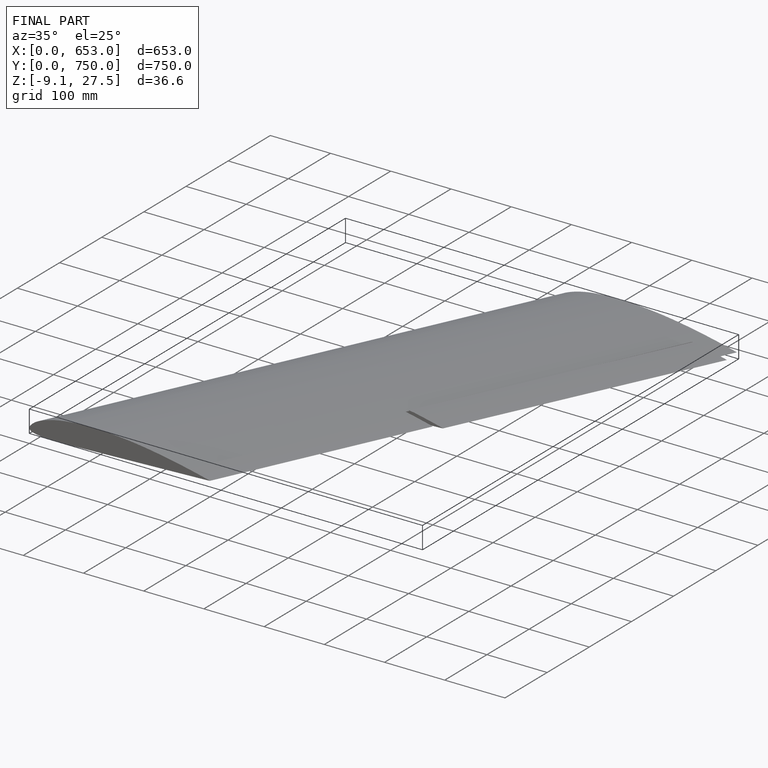
[diagram: finished part — iso view with bounding-box wireframe]
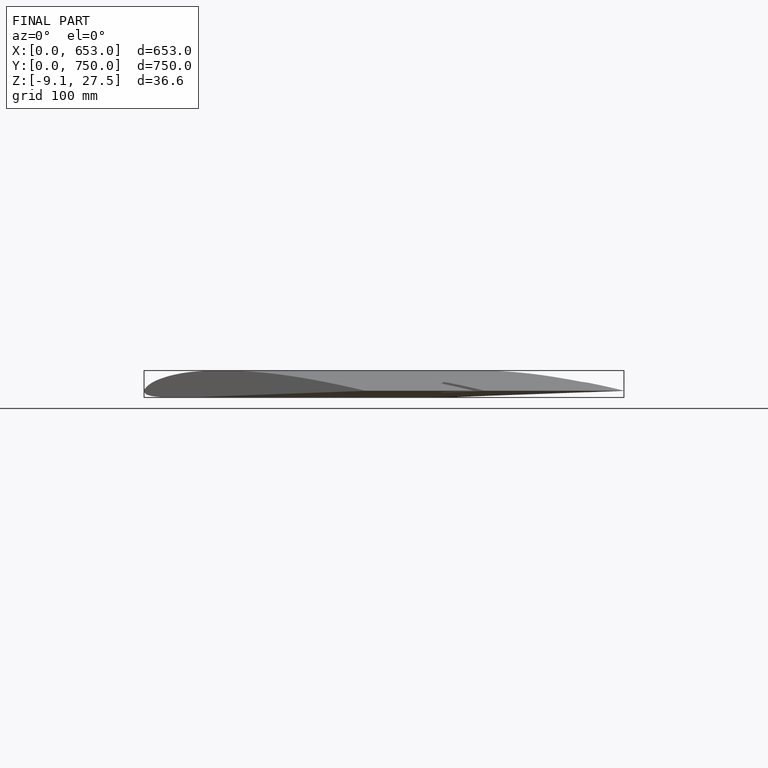
[diagram: finished part — front view with bounding-box wireframe]
